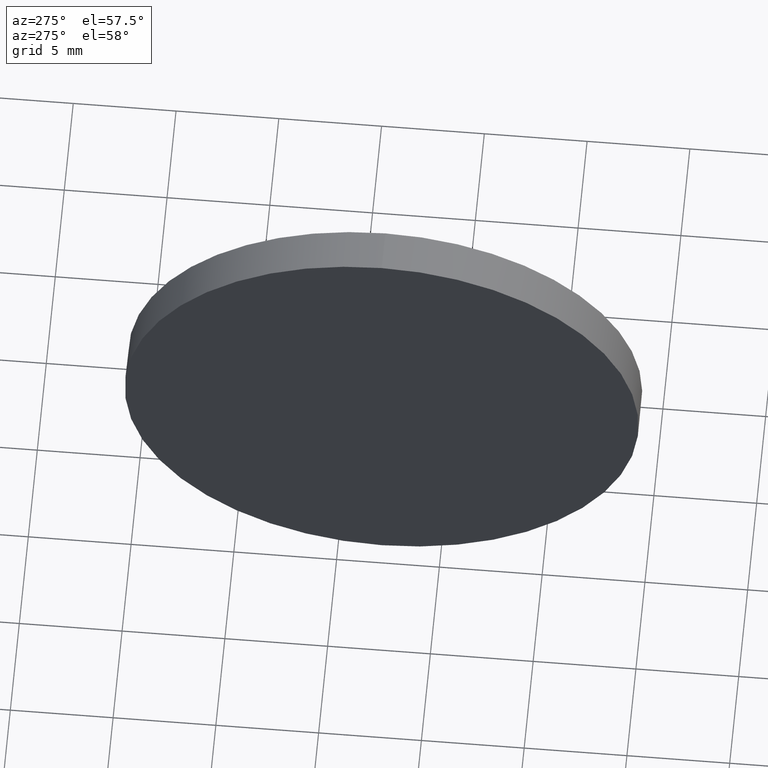
[diagram: clean part render]
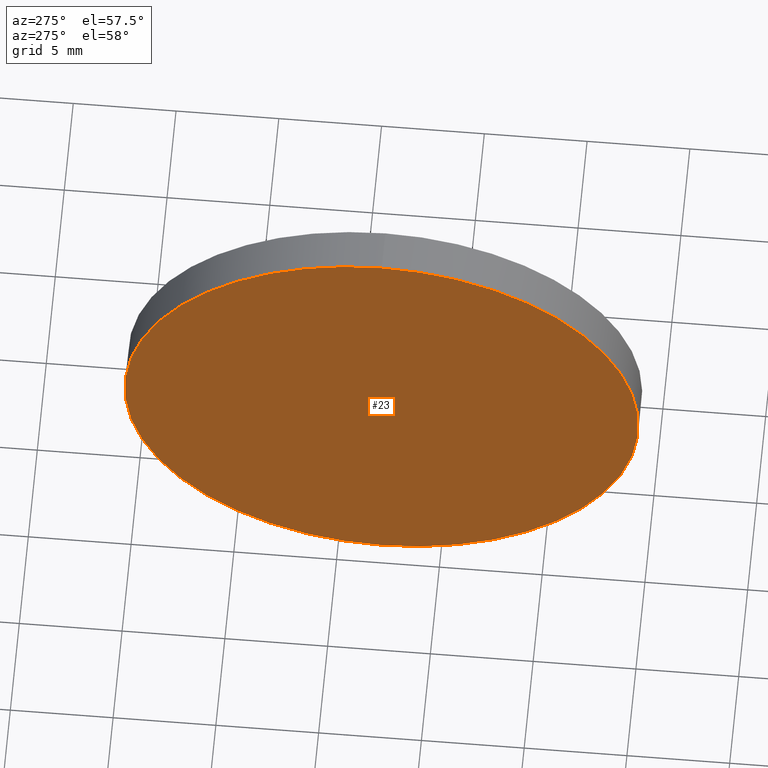
[diagram: same view with one face highlighted and labeled with its STEP entity id]
A machine part, auxiliary view. The second image highlights one B-rep face of the part: STEP entity #23.
In plain terms, the highlighted planar face has unit normal (1, 0, 0).
Its self-contained STEP definition (entity closure, byte-faithful):
#1 = DIRECTION ( 'NONE',  ( -1.000000000000000000, -0.0000000000000000000, -0.0000000000000000000 ) ) ;
#12 = DIRECTION ( 'NONE',  ( 0.0000000000000000000, 0.0000000000000000000, -1.000000000000000000 ) ) ;
#19 = AXIS2_PLACEMENT_3D ( 'NONE', #117, #1, #86 ) ;
#23 = ADVANCED_FACE ( 'NONE', ( #52 ), #153, .F. ) ;
#24 = EDGE_LOOP ( 'NONE', ( #47, #131 ) ) ;
#30 = DIRECTION ( 'NONE',  ( 1.000000000000000000, 0.0000000000000000000, 0.0000000000000000000 ) ) ;
#44 = AXIS2_PLACEMENT_3D ( 'NONE', #60, #128, #45 ) ;
#45 = DIRECTION ( 'NONE',  ( 0.0000000000000000000, 0.0000000000000000000, 1.000000000000000000 ) ) ;
#47 = ORIENTED_EDGE ( 'NONE', *, *, #174, .T. ) ;
#52 = FACE_OUTER_BOUND ( 'NONE', #24, .T. ) ;
#54 = EDGE_CURVE ( 'NONE', #137, #103, #133, .T. ) ;
#60 = CARTESIAN_POINT ( 'NONE',  ( 430.6734626565939800, 67.86771829137194300, 0.0000000000000000000 ) ) ;
#63 = CARTESIAN_POINT ( 'NONE',  ( 430.6734626565939800, 67.86771829137194300, 12.49999999999999600 ) ) ;
#86 = DIRECTION ( 'NONE',  ( 0.0000000000000000000, 0.0000000000000000000, 1.000000000000000000 ) ) ;
#92 = CIRCLE ( 'NONE', #19, 12.49999999999999600 ) ;
#93 = CARTESIAN_POINT ( 'NONE',  ( 430.6734626565939800, 67.86771829137194300, 0.0000000000000000000 ) ) ;
#97 = CARTESIAN_POINT ( 'NONE',  ( 430.6734626565939800, 67.86771829137194300, -12.49999999999999600 ) ) ;
#103 = VERTEX_POINT ( 'NONE', #63 ) ;
#117 = CARTESIAN_POINT ( 'NONE',  ( 430.6734626565939800, 67.86771829137194300, 0.0000000000000000000 ) ) ;
#128 = DIRECTION ( 'NONE',  ( -1.000000000000000000, -0.0000000000000000000, -0.0000000000000000000 ) ) ;
#130 = AXIS2_PLACEMENT_3D ( 'NONE', #93, #30, #12 ) ;
#131 = ORIENTED_EDGE ( 'NONE', *, *, #54, .T. ) ;
#133 = CIRCLE ( 'NONE', #44, 12.49999999999999600 ) ;
#137 = VERTEX_POINT ( 'NONE', #97 ) ;
#153 = PLANE ( 'NONE',  #130 ) ;
#174 = EDGE_CURVE ( 'NONE', #103, #137, #92, .T. ) ;